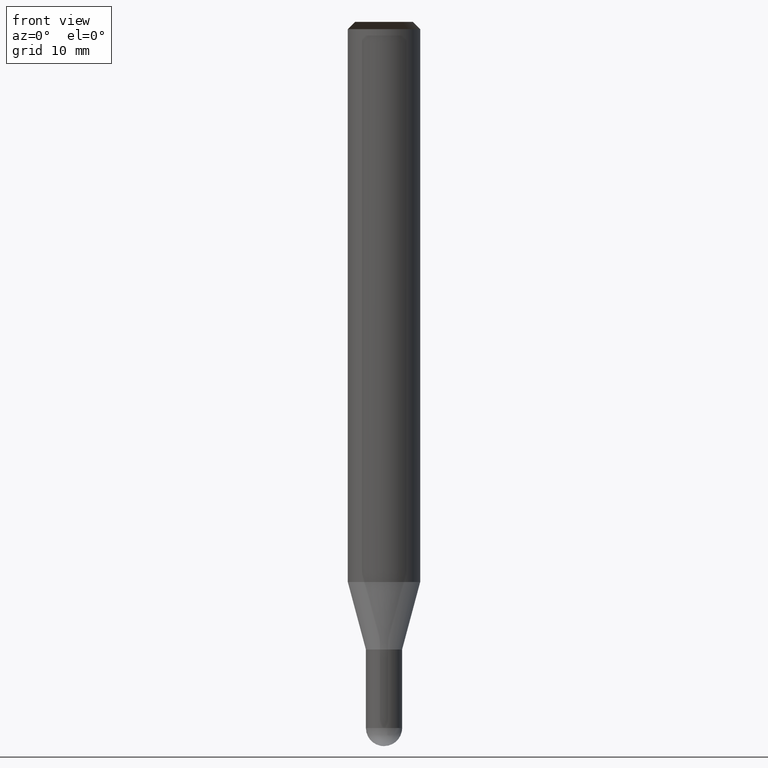
[diagram: clean part render]
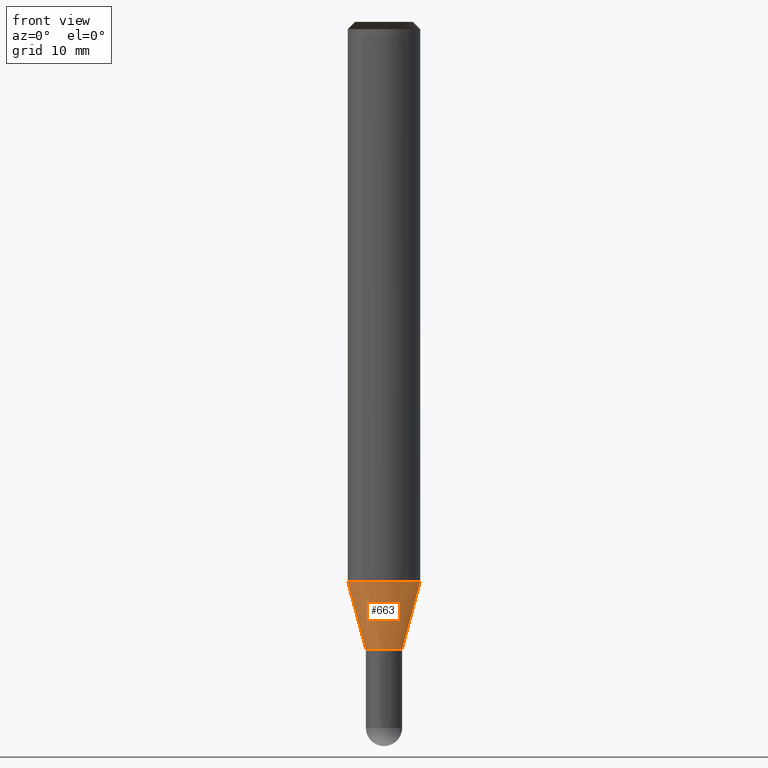
[diagram: same view with one face highlighted and labeled with its STEP entity id]
A machine part, front view. The second image highlights one B-rep face of the part: STEP entity #663.
In plain terms, the highlighted face is a freeform B-spline surface patch.
Its self-contained STEP definition (entity closure, byte-faithful):
#350=CARTESIAN_POINT('',(1.5,0.0,-5.598076211353));
#354=CARTESIAN_POINT('',(-1.5,0.0,-5.598076211353));
#355=CARTESIAN_POINT('',(3.0,0.0,-0.0));
#359=CARTESIAN_POINT('',(-3.0,0.0,-0.0));
#371=CARTESIAN_POINT('',(-1.5,-1.5,-5.598076211353));
#372=CARTESIAN_POINT('',(0.0,-1.5,-5.598076211353));
#373=CARTESIAN_POINT('',(1.5,-1.5,-5.598076211353));
#374=CARTESIAN_POINT('',(-3.0,-3.0,-0.0));
#375=CARTESIAN_POINT('',(0.0,-3.0,-0.0));
#376=CARTESIAN_POINT('',(3.0,-3.0,-0.0));
#644=(
BOUNDED_SURFACE()
B_SPLINE_SURFACE(1,2,(
(#354,#371,#372,#373,#350),
(#359,#374,#375,#376,#355)
), .UNSPECIFIED.,.F.,.F.,.F.)
B_SPLINE_SURFACE_WITH_KNOTS((2,2),(3,2,3),(
0.0,1.0),(
0.0,0.5,1.0), .UNSPECIFIED.)
GEOMETRIC_REPRESENTATION_ITEM()
RATIONAL_B_SPLINE_SURFACE(((1.0,0.707106781187,1.0,0.707106781187,1.0),
(1.0,0.707106781187,1.0,0.707106781187,1.0)
))
REPRESENTATION_ITEM('')
SURFACE()
);
#645=(
BOUNDED_CURVE()
B_SPLINE_CURVE(1,(#359,#354),.UNSPECIFIED.,.F.,.F.)
B_SPLINE_CURVE_WITH_KNOTS((2,2),
(0.0,1.0),.UNSPECIFIED.)
CURVE()
GEOMETRIC_REPRESENTATION_ITEM()
RATIONAL_B_SPLINE_CURVE((1.0,1.0))
REPRESENTATION_ITEM('')
);
#646=(
BOUNDED_CURVE()
B_SPLINE_CURVE(2,(#354,#371,#372,#373,#350),.UNSPECIFIED.,.F.,.F.)
B_SPLINE_CURVE_WITH_KNOTS((3,2,3),
(0.0,0.5,1.0),.UNSPECIFIED.)
CURVE()
GEOMETRIC_REPRESENTATION_ITEM()
RATIONAL_B_SPLINE_CURVE((1.0,0.707106781187,1.0,0.707106781187,1.0))
REPRESENTATION_ITEM('')
);
#647=(
BOUNDED_CURVE()
B_SPLINE_CURVE(1,(#350,#355),.UNSPECIFIED.,.F.,.F.)
B_SPLINE_CURVE_WITH_KNOTS((2,2),
(0.0,1.0),.UNSPECIFIED.)
CURVE()
GEOMETRIC_REPRESENTATION_ITEM()
RATIONAL_B_SPLINE_CURVE((1.0,1.0))
REPRESENTATION_ITEM('')
);
#648=(
BOUNDED_CURVE()
B_SPLINE_CURVE(2,(#355,#376,#375,#374,#359),.UNSPECIFIED.,.F.,.F.)
B_SPLINE_CURVE_WITH_KNOTS((3,2,3),
(0.0,0.5,1.0),.UNSPECIFIED.)
CURVE()
GEOMETRIC_REPRESENTATION_ITEM()
RATIONAL_B_SPLINE_CURVE((1.0,0.707106781187,1.0,0.707106781187,1.0))
REPRESENTATION_ITEM('')
);
#649=VERTEX_POINT('',#350);
#650=VERTEX_POINT('',#354);
#651=VERTEX_POINT('',#355);
#652=VERTEX_POINT('',#359);
#653=EDGE_CURVE('',#652,#650,#645,.T.);
#654=EDGE_CURVE('',#650,#649,#646,.T.);
#655=EDGE_CURVE('',#649,#651,#647,.T.);
#656=EDGE_CURVE('',#651,#652,#648,.T.);
#657=ORIENTED_EDGE('',*,*,#653,.T.);
#658=ORIENTED_EDGE('',*,*,#654,.T.);
#659=ORIENTED_EDGE('',*,*,#655,.T.);
#660=ORIENTED_EDGE('',*,*,#656,.T.);
#661=EDGE_LOOP('',(#657,#658,#659,#660));
#662=FACE_OUTER_BOUND('',#661,.T.);
#663=ADVANCED_FACE('',(#662),#644,.T.);